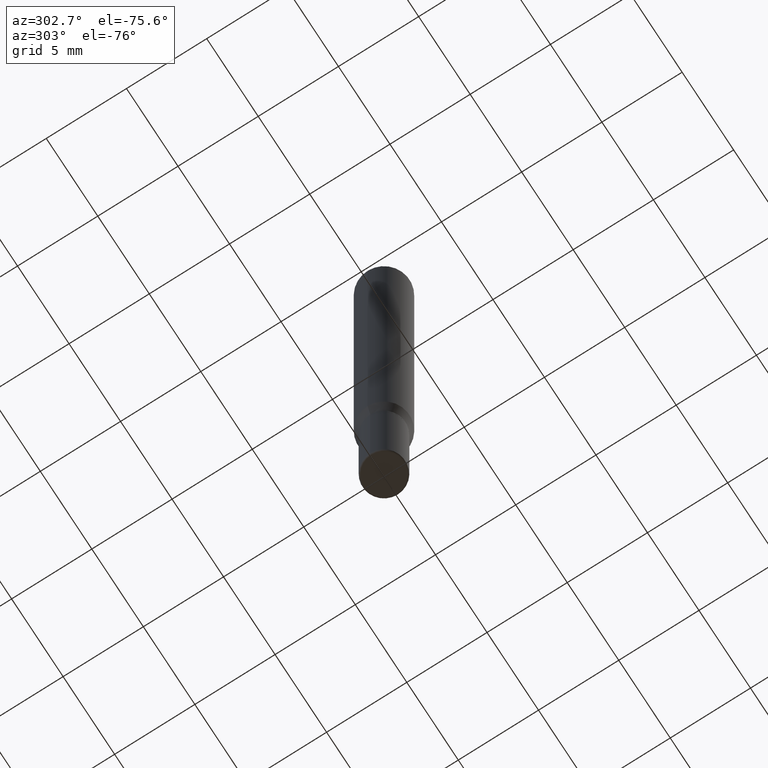
[diagram: clean part render]
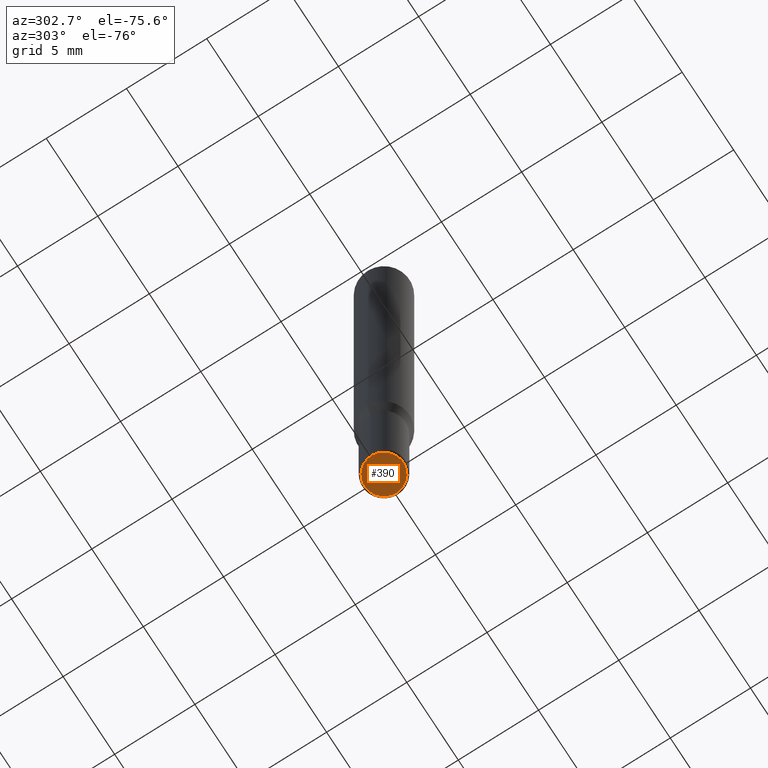
[diagram: same view with one face highlighted and labeled with its STEP entity id]
A machine part, auxiliary view. The second image highlights one B-rep face of the part: STEP entity #390.
In plain terms, the highlighted planar face has unit normal (-0, 0, 1).
Its self-contained STEP definition (entity closure, byte-faithful):
#8 = AXIS2_PLACEMENT_3D ( 'NONE', #128, #331, #440 ) ;
#25 = FACE_OUTER_BOUND ( 'NONE', #256, .T. ) ;
#29 = DIRECTION ( 'NONE',  ( 1.000000000000000000, -6.982962677686263555E-15, 0.000000000000000000 ) ) ;
#55 = CARTESIAN_POINT ( 'NONE',  ( 0.04749999999999998668, -5.568912735454817265E-15, -1.500000000000000444 ) ) ;
#128 = CARTESIAN_POINT ( 'NONE',  ( 3.668203209277706016E-29, -5.237222008264719754E-15, -1.500000000000000444 ) ) ;
#149 = DIRECTION ( 'NONE',  ( -2.438088387897960049E-29, 3.491481338843145188E-15, 1.000000000000000000 ) ) ;
#163 = EDGE_CURVE ( 'NONE', #306, #164, #167, .T. ) ;
#164 = VERTEX_POINT ( 'NONE', #55 ) ;
#167 = CIRCLE ( 'NONE', #8, 0.04749999999999998668 ) ;
#203 = CARTESIAN_POINT ( 'NONE',  ( -0.04749999999999998668, -4.873221937037561039E-15, -1.500000000000000444 ) ) ;
#224 = DIRECTION ( 'NONE',  ( -2.445468806185136597E-29, 3.491481338843145583E-15, 1.000000000000000000 ) ) ;
#256 = EDGE_LOOP ( 'NONE', ( #276, #484 ) ) ;
#276 = ORIENTED_EDGE ( 'NONE', *, *, #379, .F. ) ;
#306 = VERTEX_POINT ( 'NONE', #203 ) ;
#317 = AXIS2_PLACEMENT_3D ( 'NONE', #428, #224, #29 ) ;
#331 = DIRECTION ( 'NONE',  ( -2.445468806185136597E-29, 3.491481338843145583E-15, 1.000000000000000000 ) ) ;
#340 = PLANE ( 'NONE',  #387 ) ;
#379 = EDGE_CURVE ( 'NONE', #164, #306, #507, .T. ) ;
#387 = AXIS2_PLACEMENT_3D ( 'NONE', #513, #149, #396 ) ;
#390 = ADVANCED_FACE ( 'NONE', ( #25 ), #340, .F. ) ;
#396 = DIRECTION ( 'NONE',  ( 1.000000000000000000, -6.982962677686265922E-15, 4.876176775795935793E-29 ) ) ;
#428 = CARTESIAN_POINT ( 'NONE',  ( 3.668203209277706016E-29, -5.237222008264719754E-15, -1.500000000000000444 ) ) ;
#440 = DIRECTION ( 'NONE',  ( 1.000000000000000000, -6.982962677686263555E-15, 0.000000000000000000 ) ) ;
#484 = ORIENTED_EDGE ( 'NONE', *, *, #163, .F. ) ;
#507 = CIRCLE ( 'NONE', #317, 0.04749999999999998668 ) ;
#513 = CARTESIAN_POINT ( 'NONE',  ( 3.582686580359767159E-29, -5.359686688179454114E-15, -1.500000000000000444 ) ) ;